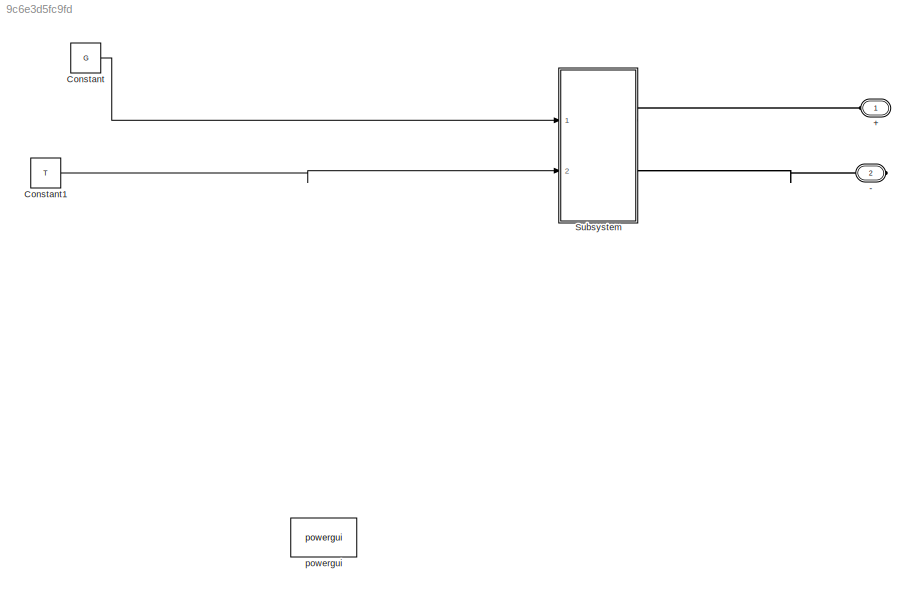
MODEL slx_9c6e3d5fc9fd
KIND model
CONFIG AbsTol = auto
CONFIG FixedStep = auto
CONFIG MaxStep = auto
CONFIG MinStep = auto
CONFIG RelTol = 1e-3
CONFIG SampleTimeConstraint = Unconstrained
CONFIG Solver = ode45
CONFIG SolverMode = Auto
CONFIG SolverName = ode45
CONFIG StartTime = 0.0
CONFIG StopTime = 10.0
BLOCK [PMIOPort] +
  Port = 1
  Side = Left
  Tag = PMCPort
BLOCK [PMIOPort] -
  Port = 2
  Side = Right
  Tag = PMCPort
BLOCK [Constant] Constant
  Value = G
BLOCK [Constant] Constant1
  Value = T
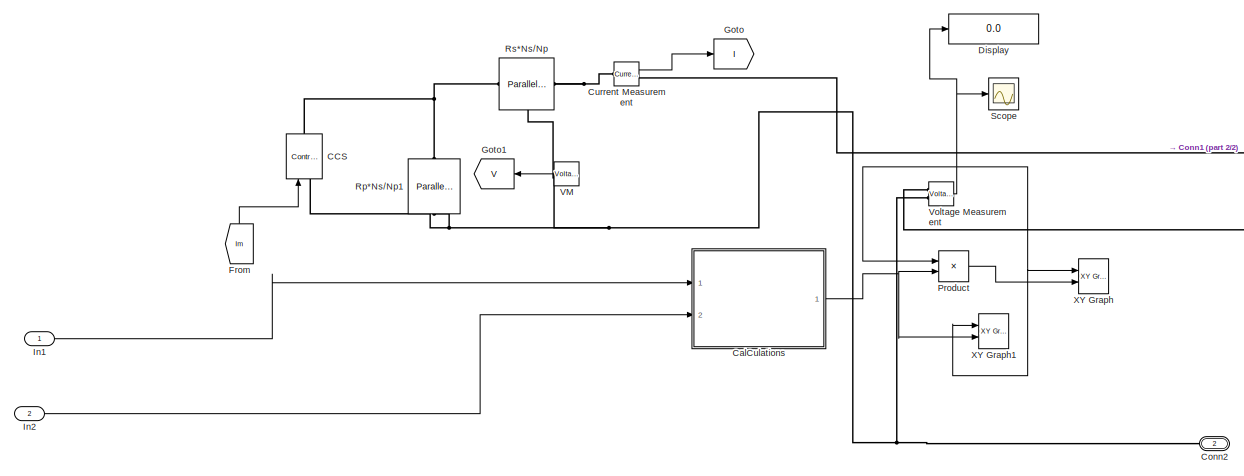
[diagram: Subsystem - part 1/2, most of the canvas]
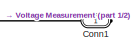
[diagram: Subsystem - part 2/2, top right region]
BLOCK [SubSystem] Subsystem
  Ports = [2, 0, 0, 0, 0, 0, 2]
  RequestExecContextInheritance = off
BLOCK [Reference] Subsystem/CCS  REF=powerlib/Electrical
Sources/Controlled Current Source
  Amplitude = 0
  Frequency = 0
  Initialize = on
  Measurements = None
  Phase = 0
  Ports = [1, 0, 0, 0, 0, 1, 1]
  SourceBlock = powerlib/Electrical\nSources/Controlled Current Source
  SourceType = Controlled Current Source
  Source_Type = AC
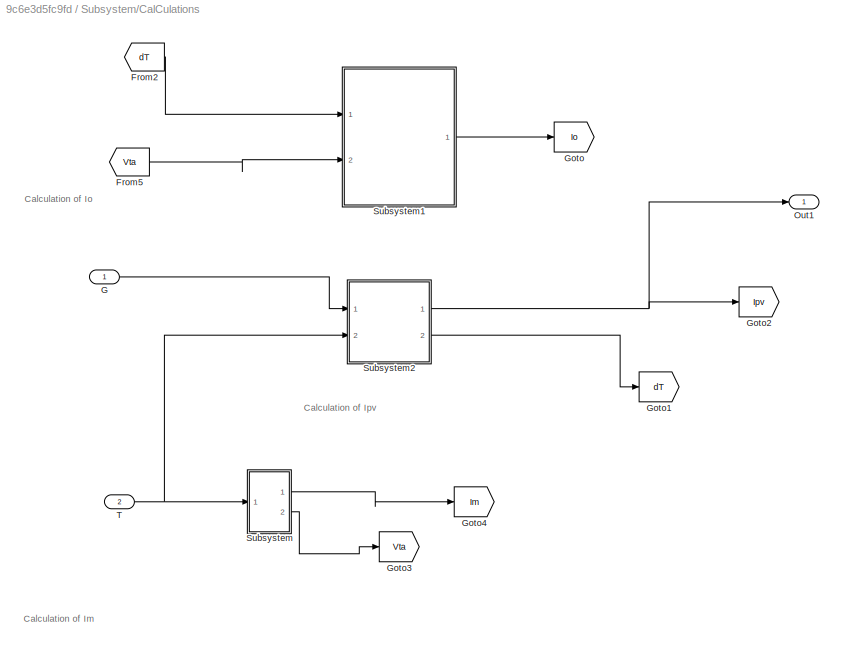
BLOCK [SubSystem] Subsystem/CalCulations
  Ports = [2, 1]
  RequestExecContextInheritance = off
BLOCK [From] Subsystem/CalCulations/From2
  GotoTag = dT
BLOCK [From] Subsystem/CalCulations/From5
  GotoTag = Vta
BLOCK [Inport] Subsystem/CalCulations/G
  IconDisplay = Port number
BLOCK [Goto] Subsystem/CalCulations/Goto
  GotoTag = Io
BLOCK [Goto] Subsystem/CalCulations/Goto1
  GotoTag = dT
BLOCK [Goto] Subsystem/CalCulations/Goto2
  GotoTag = Ipv
BLOCK [Goto] Subsystem/CalCulations/Goto3
  GotoTag = Vta
BLOCK [Goto] Subsystem/CalCulations/Goto4
  GotoTag = Im
BLOCK [Outport] Subsystem/CalCulations/Out1
  IconDisplay = Port number
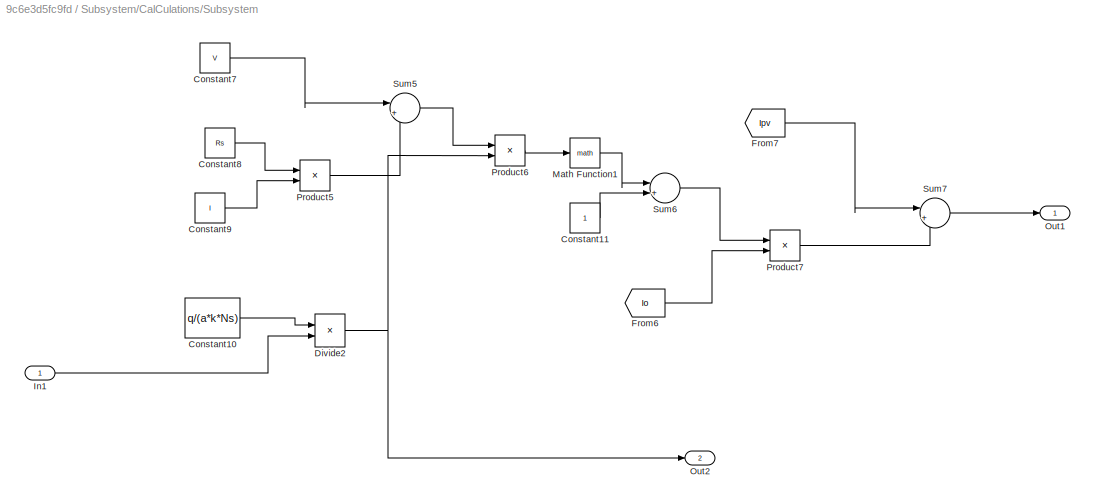
BLOCK [SubSystem] Subsystem/CalCulations/Subsystem
  Ports = [1, 2]
  RequestExecContextInheritance = off
BLOCK [Constant] Subsystem/CalCulations/Subsystem/Constant10
  Value = q/(a*k*Ns)
BLOCK [Constant] Subsystem/CalCulations/Subsystem/Constant11
BLOCK [Constant] Subsystem/CalCulations/Subsystem/Constant7
  Value = V
BLOCK [Constant] Subsystem/CalCulations/Subsystem/Constant8
  Value = Rs
BLOCK [Constant] Subsystem/CalCulations/Subsystem/Constant9
  Value = I
BLOCK [Product] Subsystem/CalCulations/Subsystem/Divide2
  InputSameDT = off
  Inputs = */
  OutDataTypeStr = Inherit: Inherit via internal rule
  Ports = [2, 1]
  RndMeth = Floor
  SaturateOnIntegerOverflow = off
BLOCK [From] Subsystem/CalCulations/Subsystem/From6
  GotoTag = Io
BLOCK [From] Subsystem/CalCulations/Subsystem/From7
  GotoTag = Ipv
BLOCK [Inport] Subsystem/CalCulations/Subsystem/In1
  IconDisplay = Port number
BLOCK [Math] Subsystem/CalCulations/Subsystem/Math Function1
  Ports = [1, 1]
BLOCK [Outport] Subsystem/CalCulations/Subsystem/Out1
  IconDisplay = Port number
BLOCK [Outport] Subsystem/CalCulations/Subsystem/Out2
  IconDisplay = Port number
  Port = 2
BLOCK [Product] Subsystem/CalCulations/Subsystem/Product5
  InputSameDT = off
  OutDataTypeStr = Inherit: Inherit via internal rule
  Ports = [2, 1]
  RndMeth = Floor
  SaturateOnIntegerOverflow = off
BLOCK [Product] Subsystem/CalCulations/Subsystem/Product6
  InputSameDT = off
  OutDataTypeStr = Inherit: Inherit via internal rule
  Ports = [2, 1]
  RndMeth = Floor
  SaturateOnIntegerOverflow = off
BLOCK [Product] Subsystem/CalCulations/Subsystem/Product7
  InputSameDT = off
  OutDataTypeStr = Inherit: Inherit via internal rule
  Ports = [2, 1]
  RndMeth = Floor
  SaturateOnIntegerOverflow = off
BLOCK [Sum] Subsystem/CalCulations/Subsystem/Sum5
  IconShape = round
  InputSameDT = off
  Inputs = |++
  OutDataTypeStr = Inherit: Inherit via internal rule
  Ports = [2, 1]
  SaturateOnIntegerOverflow = off
BLOCK [Sum] Subsystem/CalCulations/Subsystem/Sum6
  IconShape = round
  InputSameDT = off
  Inputs = |+-
  OutDataTypeStr = Inherit: Inherit via internal rule
  Ports = [2, 1]
  SaturateOnIntegerOverflow = off
BLOCK [Sum] Subsystem/CalCulations/Subsystem/Sum7
  IconShape = round
  InputSameDT = off
  Inputs = |+-
  OutDataTypeStr = Inherit: Inherit via internal rule
  Ports = [2, 1]
  SaturateOnIntegerOverflow = off
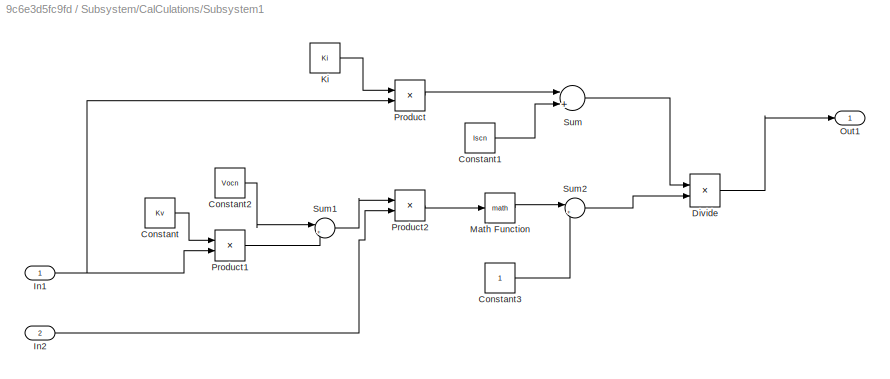
BLOCK [SubSystem] Subsystem/CalCulations/Subsystem1
  Ports = [2, 1]
  RequestExecContextInheritance = off
BLOCK [Constant] Subsystem/CalCulations/Subsystem1/Constant
  Value = Kv
BLOCK [Constant] Subsystem/CalCulations/Subsystem1/Constant1
  Value = Iscn
BLOCK [Constant] Subsystem/CalCulations/Subsystem1/Constant2
  Value = Vocn
BLOCK [Constant] Subsystem/CalCulations/Subsystem1/Constant3
BLOCK [Product] Subsystem/CalCulations/Subsystem1/Divide
  InputSameDT = off
  Inputs = */
  OutDataTypeStr = Inherit: Inherit via internal rule
  Ports = [2, 1]
  RndMeth = Floor
  SaturateOnIntegerOverflow = off
BLOCK [Inport] Subsystem/CalCulations/Subsystem1/In1
  IconDisplay = Port number
BLOCK [Inport] Subsystem/CalCulations/Subsystem1/In2
  IconDisplay = Port number
  Port = 2
BLOCK [Constant] Subsystem/CalCulations/Subsystem1/Ki
  Value = Ki
BLOCK [Math] Subsystem/CalCulations/Subsystem1/Math Function
  Ports = [1, 1]
BLOCK [Outport] Subsystem/CalCulations/Subsystem1/Out1
  IconDisplay = Port number
BLOCK [Product] Subsystem/CalCulations/Subsystem1/Product
  InputSameDT = off
  OutDataTypeStr = Inherit: Inherit via internal rule
  Ports = [2, 1]
  RndMeth = Floor
  SaturateOnIntegerOverflow = off
BLOCK [Product] Subsystem/CalCulations/Subsystem1/Product1
  InputSameDT = off
  OutDataTypeStr = Inherit: Inherit via internal rule
  Ports = [2, 1]
  RndMeth = Floor
  SaturateOnIntegerOverflow = off
BLOCK [Product] Subsystem/CalCulations/Subsystem1/Product2
  InputSameDT = off
  OutDataTypeStr = Inherit: Inherit via internal rule
  Ports = [2, 1]
  RndMeth = Floor
  SaturateOnIntegerOverflow = off
BLOCK [Sum] Subsystem/CalCulations/Subsystem1/Sum
  InputSameDT = off
  Inputs = |++
  OutDataTypeStr = Inherit: Inherit via internal rule
  Ports = [2, 1]
  SaturateOnIntegerOverflow = off
BLOCK [Sum] Subsystem/CalCulations/Subsystem1/Sum1
  IconShape = round
  InputSameDT = off
  Inputs = |++
  OutDataTypeStr = Inherit: Inherit via internal rule
  Ports = [2, 1]
  SaturateOnIntegerOverflow = off
BLOCK [Sum] Subsystem/CalCulations/Subsystem1/Sum2
  IconShape = round
  InputSameDT = off
  Inputs = |+-
  OutDataTypeStr = Inherit: Inherit via internal rule
  Ports = [2, 1]
  SaturateOnIntegerOverflow = off
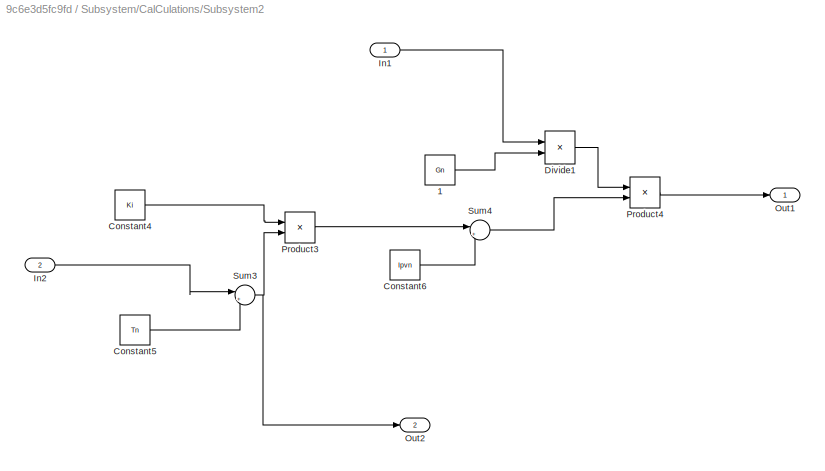
BLOCK [SubSystem] Subsystem/CalCulations/Subsystem2
  Ports = [2, 2]
  RequestExecContextInheritance = off
BLOCK [Constant] Subsystem/CalCulations/Subsystem2/1
  Value = Gn
BLOCK [Constant] Subsystem/CalCulations/Subsystem2/Constant4
  Value = Ki
BLOCK [Constant] Subsystem/CalCulations/Subsystem2/Constant5
  Value = Tn
BLOCK [Constant] Subsystem/CalCulations/Subsystem2/Constant6
  Value = Ipvn
BLOCK [Product] Subsystem/CalCulations/Subsystem2/Divide1
  InputSameDT = off
  Inputs = */
  OutDataTypeStr = Inherit: Inherit via internal rule
  Ports = [2, 1]
  RndMeth = Floor
  SaturateOnIntegerOverflow = off
BLOCK [Inport] Subsystem/CalCulations/Subsystem2/In1
  IconDisplay = Port number
BLOCK [Inport] Subsystem/CalCulations/Subsystem2/In2
  IconDisplay = Port number
  Port = 2
BLOCK [Outport] Subsystem/CalCulations/Subsystem2/Out1
  IconDisplay = Port number
BLOCK [Outport] Subsystem/CalCulations/Subsystem2/Out2
  IconDisplay = Port number
  Port = 2
BLOCK [Product] Subsystem/CalCulations/Subsystem2/Product3
  InputSameDT = off
  OutDataTypeStr = Inherit: Inherit via internal rule
  Ports = [2, 1]
  RndMeth = Floor
  SaturateOnIntegerOverflow = off
BLOCK [Product] Subsystem/CalCulations/Subsystem2/Product4
  InputSameDT = off
  OutDataTypeStr = Inherit: Inherit via internal rule
  Ports = [2, 1]
  RndMeth = Floor
  SaturateOnIntegerOverflow = off
BLOCK [Sum] Subsystem/CalCulations/Subsystem2/Sum3
  IconShape = round
  InputSameDT = off
  Inputs = |+-
  OutDataTypeStr = Inherit: Inherit via internal rule
  Ports = [2, 1]
  SaturateOnIntegerOverflow = off
BLOCK [Sum] Subsystem/CalCulations/Subsystem2/Sum4
  IconShape = round
  InputSameDT = off
  Inputs = |++
  OutDataTypeStr = Inherit: Inherit via internal rule
  Ports = [2, 1]
  SaturateOnIntegerOverflow = off
BLOCK [Inport] Subsystem/CalCulations/T
  IconDisplay = Port number
  Port = 2
BLOCK [PMIOPort] Subsystem/Conn1
  Port = 1
  Side = Right
BLOCK [PMIOPort] Subsystem/Conn2
  Port = 2
  Side = Right
BLOCK [Reference] Subsystem/Current Measurement  REF=powerlib/Measurements/Current Measurement
  OutputType = Complex
  PSBequivalent = 0
  PhasorSimulation = off
  Ports = [0, 1, 0, 0, 0, 1, 1]
  SourceBlock = powerlib/Measurements/Current Measurement
  SourceType = Current Measurement
  UserDataPersistent = on
BLOCK [Display] Subsystem/Display
  Decimation = 1
  Ports = [1]
BLOCK [From] Subsystem/From
  GotoTag = Im
BLOCK [Goto] Subsystem/Goto
  GotoTag = I
BLOCK [Goto] Subsystem/Goto1
  GotoTag = V
BLOCK [Inport] Subsystem/In1
  IconDisplay = Port number
BLOCK [Inport] Subsystem/In2
  IconDisplay = Port number
  Port = 2
BLOCK [Product] Subsystem/Product
  InputSameDT = off
  OutDataTypeStr = Inherit: Inherit via internal rule
  Ports = [2, 1]
  RndMeth = Floor
  SaturateOnIntegerOverflow = off
BLOCK [Reference] Subsystem/Rp*Ns//Np1  REF=powerlib/Elements/Parallel RLC Branch
  AttributesFormatString = \n
  BranchType = R
  Capacitance = 1e-6
  Inductance = 1e-3
  InitialCurrent = 0
  InitialVoltage = 0
  LConnTagsString = a
  Measurements = None
  Ports = [0, 0, 0, 0, 0, 1, 1]
  RConnTagsString = __new0
  Resistance = Rp*Nss/Npp
  SetiL0 = off
  Setx0 = off
  SourceBlock = powerlib/Elements/Parallel RLC Branch
  SourceType = Parallel RLC Branch
BLOCK [Reference] Subsystem/Rs*Ns//Np  REF=powerlib/Elements/Parallel RLC Branch
  AttributesFormatString = \n
  BranchType = R
  Capacitance = 1e-6
  Inductance = 1e-3
  InitialCurrent = 0
  InitialVoltage = 0
  LConnTagsString = a
  Measurements = None
  Ports = [0, 0, 0, 0, 0, 1, 1]
  RConnTagsString = __new0
  Resistance = Rs*Nss/Npp
  SetiL0 = off
  Setx0 = off
  SourceBlock = powerlib/Elements/Parallel RLC Branch
  SourceType = Parallel RLC Branch
BLOCK [Scope] Subsystem/Scope
  Floating = off
  NumInputPorts = 1
  Ports = [1]
BLOCK [Reference] Subsystem/VM  REF=powerlib/Measurements/Voltage Measurement
  OutputType = Complex
  PSBequivalent = 0
  PhasorSimulation = off
  Ports = [0, 1, 0, 0, 0, 2]
  SourceBlock = powerlib/Measurements/Voltage Measurement
  SourceType = Voltage Measurement
  UserDataPersistent = on
BLOCK [Reference] Subsystem/Voltage Measurement  REF=powerlib/Measurements/Voltage Measurement
  OutputType = Complex
  PSBequivalent = 0
  PhasorSimulation = off
  Ports = [0, 1, 0, 0, 0, 2]
  SourceBlock = powerlib/Measurements/Voltage Measurement
  SourceType = Voltage Measurement
  UserDataPersistent = on
BLOCK [Reference] Subsystem/XY Graph  REF=simulink/Sinks/XY Graph
  Ports = [2]
  SourceBlock = simulink/Sinks/XY Graph
  SourceType = XY scope.
  st = -1
  xmax = 30
  xmin = 0
  ymax = 60
  ymin = 0
BLOCK [Reference] Subsystem/XY Graph1  REF=simulink/Sinks/XY Graph
  Ports = [2]
  SourceBlock = simulink/Sinks/XY Graph
  SourceType = XY scope.
  st = -1
  xmax = 30
  xmin = 0
  ymax = 5
  ymin = 0
BLOCK [Reference] powergui  REF=powerlib/powergui
  DisableRonSwitches = off
  DisableSnubberDevices = off
  DisableVfSwitches = off
  DisplayEquations = off
  DisplayStyle = 1
  EnableUseOfTLC = off
  ErrMax = 1e-4
  Frange = [0:2:500]
  FreqAxis = off
  FunctionMessages = off
  HookPort = off
  Interpol = off
  Iterations = 50
  MaxFrequency = 1000
  Pbase = 100e6
  Ports = []
  Priority = 1
  ResistiveCurrentMeasurement = off
  RestoreLinks = warning
  RmsSteady = 1
  SPID = off
  SampleTime = 1e-3
  ShowGrid = off
  SolverType = Tustin/Backward Euler (TBE)
  SourceBlock = powerlib/powergui
  SourceType = PSB option menu block
  StartTime = 0.0
  SwTol = 0
  Ts = 100
  UnitsV = kV
  UnitsW = MW
  UserDataPersistent = on
  Xlog = on
  Ylog = off
  ZoomFFT = off
  buscounter = 0
  cycles = 1
  display = off
  echomessages = off
  frequency = 60
  frequencyindice = 0
  frequencyindicesteady = 1
  fundamental = 60
  methode = off
  save = off
  structure = 0
  variable = ZData
  x0status = blocks
ANNOTATION Subsystem/CalCulations: Calculation of Im
ANNOTATION Subsystem/CalCulations: Calculation of Io
ANNOTATION Subsystem/CalCulations: Calculation of Ipv
LINE Constant1:1 -> Subsystem:2
LINE Constant:1 -> Subsystem:1
LINE Subsystem/CalCulations/From2:1 -> Subsystem/CalCulations/Subsystem1:1
LINE Subsystem/CalCulations/From5:1 -> Subsystem/CalCulations/Subsystem1:2
LINE Subsystem/CalCulations/G:1 -> Subsystem/CalCulations/Subsystem2:1
LINE Subsystem/CalCulations/Subsystem/Constant10:1 -> Subsystem/CalCulations/Subsystem/Divide2:1
LINE Subsystem/CalCulations/Subsystem/Constant11:1 -> Subsystem/CalCulations/Subsystem/Sum6:2
LINE Subsystem/CalCulations/Subsystem/Constant7:1 -> Subsystem/CalCulations/Subsystem/Sum5:1
LINE Subsystem/CalCulations/Subsystem/Constant8:1 -> Subsystem/CalCulations/Subsystem/Product5:1
LINE Subsystem/CalCulations/Subsystem/Constant9:1 -> Subsystem/CalCulations/Subsystem/Product5:2
NET Subsystem/CalCulations/Subsystem/Divide2:1 -> Subsystem/CalCulations/Subsystem/Out2:1, Subsystem/CalCulations/Subsystem/Product6:2
LINE Subsystem/CalCulations/Subsystem/From6:1 -> Subsystem/CalCulations/Subsystem/Product7:2
LINE Subsystem/CalCulations/Subsystem/From7:1 -> Subsystem/CalCulations/Subsystem/Sum7:1
LINE Subsystem/CalCulations/Subsystem/In1:1 -> Subsystem/CalCulations/Subsystem/Divide2:2
LINE Subsystem/CalCulations/Subsystem/Math Function1:1 -> Subsystem/CalCulations/Subsystem/Sum6:1
LINE Subsystem/CalCulations/Subsystem/Product5:1 -> Subsystem/CalCulations/Subsystem/Sum5:2
LINE Subsystem/CalCulations/Subsystem/Product6:1 -> Subsystem/CalCulations/Subsystem/Math Function1:1
LINE Subsystem/CalCulations/Subsystem/Product7:1 -> Subsystem/CalCulations/Subsystem/Sum7:2
LINE Subsystem/CalCulations/Subsystem/Sum5:1 -> Subsystem/CalCulations/Subsystem/Product6:1
LINE Subsystem/CalCulations/Subsystem/Sum6:1 -> Subsystem/CalCulations/Subsystem/Product7:1
LINE Subsystem/CalCulations/Subsystem/Sum7:1 -> Subsystem/CalCulations/Subsystem/Out1:1
LINE Subsystem/CalCulations/Subsystem1/Constant1:1 -> Subsystem/CalCulations/Subsystem1/Sum:2
LINE Subsystem/CalCulations/Subsystem1/Constant2:1 -> Subsystem/CalCulations/Subsystem1/Sum1:1
LINE Subsystem/CalCulations/Subsystem1/Constant3:1 -> Subsystem/CalCulations/Subsystem1/Sum2:2
LINE Subsystem/CalCulations/Subsystem1/Constant:1 -> Subsystem/CalCulations/Subsystem1/Product1:1
LINE Subsystem/CalCulations/Subsystem1/Divide:1 -> Subsystem/CalCulations/Subsystem1/Out1:1
NET Subsystem/CalCulations/Subsystem1/In1:1 -> Subsystem/CalCulations/Subsystem1/Product1:2, Subsystem/CalCulations/Subsystem1/Product:2
LINE Subsystem/CalCulations/Subsystem1/In2:1 -> Subsystem/CalCulations/Subsystem1/Product2:2
LINE Subsystem/CalCulations/Subsystem1/Ki:1 -> Subsystem/CalCulations/Subsystem1/Product:1
LINE Subsystem/CalCulations/Subsystem1/Math Function:1 -> Subsystem/CalCulations/Subsystem1/Sum2:1
LINE Subsystem/CalCulations/Subsystem1/Product1:1 -> Subsystem/CalCulations/Subsystem1/Sum1:2
LINE Subsystem/CalCulations/Subsystem1/Product2:1 -> Subsystem/CalCulations/Subsystem1/Math Function:1
LINE Subsystem/CalCulations/Subsystem1/Product:1 -> Subsystem/CalCulations/Subsystem1/Sum:1
LINE Subsystem/CalCulations/Subsystem1/Sum1:1 -> Subsystem/CalCulations/Subsystem1/Product2:1
LINE Subsystem/CalCulations/Subsystem1/Sum2:1 -> Subsystem/CalCulations/Subsystem1/Divide:2
LINE Subsystem/CalCulations/Subsystem1/Sum:1 -> Subsystem/CalCulations/Subsystem1/Divide:1
LINE Subsystem/CalCulations/Subsystem1:1 -> Subsystem/CalCulations/Goto:1
LINE Subsystem/CalCulations/Subsystem2/1:1 -> Subsystem/CalCulations/Subsystem2/Divide1:2
LINE Subsystem/CalCulations/Subsystem2/Constant4:1 -> Subsystem/CalCulations/Subsystem2/Product3:1
LINE Subsystem/CalCulations/Subsystem2/Constant5:1 -> Subsystem/CalCulations/Subsystem2/Sum3:2
LINE Subsystem/CalCulations/Subsystem2/Constant6:1 -> Subsystem/CalCulations/Subsystem2/Sum4:2
LINE Subsystem/CalCulations/Subsystem2/Divide1:1 -> Subsystem/CalCulations/Subsystem2/Product4:1
LINE Subsystem/CalCulations/Subsystem2/In1:1 -> Subsystem/CalCulations/Subsystem2/Divide1:1
LINE Subsystem/CalCulations/Subsystem2/In2:1 -> Subsystem/CalCulations/Subsystem2/Sum3:1
LINE Subsystem/CalCulations/Subsystem2/Product3:1 -> Subsystem/CalCulations/Subsystem2/Sum4:1
LINE Subsystem/CalCulations/Subsystem2/Product4:1 -> Subsystem/CalCulations/Subsystem2/Out1:1
NET Subsystem/CalCulations/Subsystem2/Sum3:1 -> Subsystem/CalCulations/Subsystem2/Out2:1, Subsystem/CalCulations/Subsystem2/Product3:2
LINE Subsystem/CalCulations/Subsystem2/Sum4:1 -> Subsystem/CalCulations/Subsystem2/Product4:2
NET Subsystem/CalCulations/Subsystem2:1 -> Subsystem/CalCulations/Goto2:1, Subsystem/CalCulations/Out1:1
LINE Subsystem/CalCulations/Subsystem2:2 -> Subsystem/CalCulations/Goto1:1
LINE Subsystem/CalCulations/Subsystem:1 -> Subsystem/CalCulations/Goto4:1
LINE Subsystem/CalCulations/Subsystem:2 -> Subsystem/CalCulations/Goto3:1
NET Subsystem/CalCulations/T:1 -> Subsystem/CalCulations/Subsystem2:2, Subsystem/CalCulations/Subsystem:1
NET Subsystem/CalCulations:1 -> Subsystem/Product:2, Subsystem/XY Graph1:2
LINE Subsystem/Current Measurement:1 -> Subsystem/Goto:1
LINE Subsystem/From:1 -> Subsystem/CCS:1
LINE Subsystem/In1:1 -> Subsystem/CalCulations:1
LINE Subsystem/In2:1 -> Subsystem/CalCulations:2
LINE Subsystem/Product:1 -> Subsystem/XY Graph:2
LINE Subsystem/VM:1 -> Subsystem/Goto1:1
NET Subsystem/Voltage Measurement:1 -> Subsystem/Display:1, Subsystem/Product:1, Subsystem/Scope:1, Subsystem/XY Graph1:1, Subsystem/XY Graph:1
PLINE +:RConn1 -- Subsystem:RConn1
PLINE -:RConn1 -- Subsystem:RConn2
PNET net1: Subsystem/CCS:LConn1 -- Subsystem/Conn2:RConn1 -- Subsystem/Rp*Ns//Np1:RConn1 -- Subsystem/VM:LConn1 -- Subsystem/Voltage Measurement:LConn2
PNET net2: Subsystem/CCS:RConn1 -- Subsystem/Rp*Ns//Np1:LConn1 -- Subsystem/Rs*Ns//Np:LConn1
PNET net3: Subsystem/Conn1:RConn1 -- Subsystem/Current Measurement:RConn1 -- Subsystem/Voltage Measurement:LConn1
PNET net4: Subsystem/Current Measurement:LConn1 -- Subsystem/Rs*Ns//Np:RConn1 -- Subsystem/VM:LConn2
note: NET lines group one-source signal fan-out (src -> all destinations, sorted); 1:1 wires keep LINE; PNET lines group multi-terminal physical nets as a canonical sorted terminal list (undirected conserving connections); 2-terminal nets keep the pairwise PLINE form
